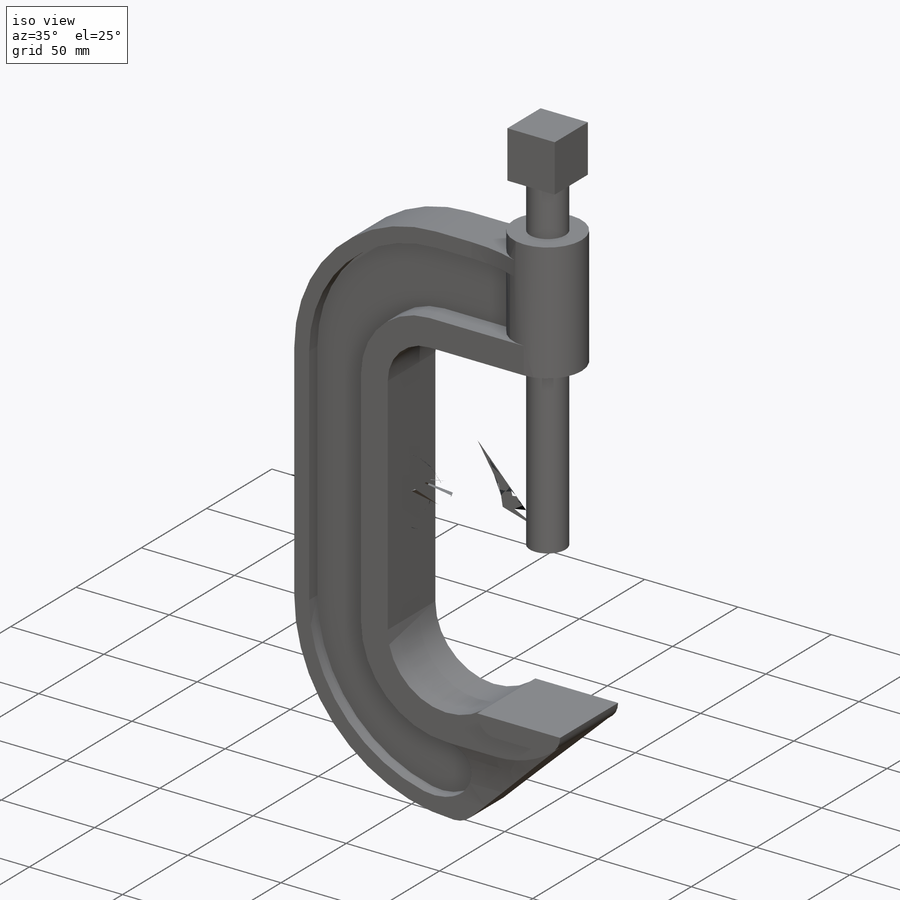
[diagram: iso view]
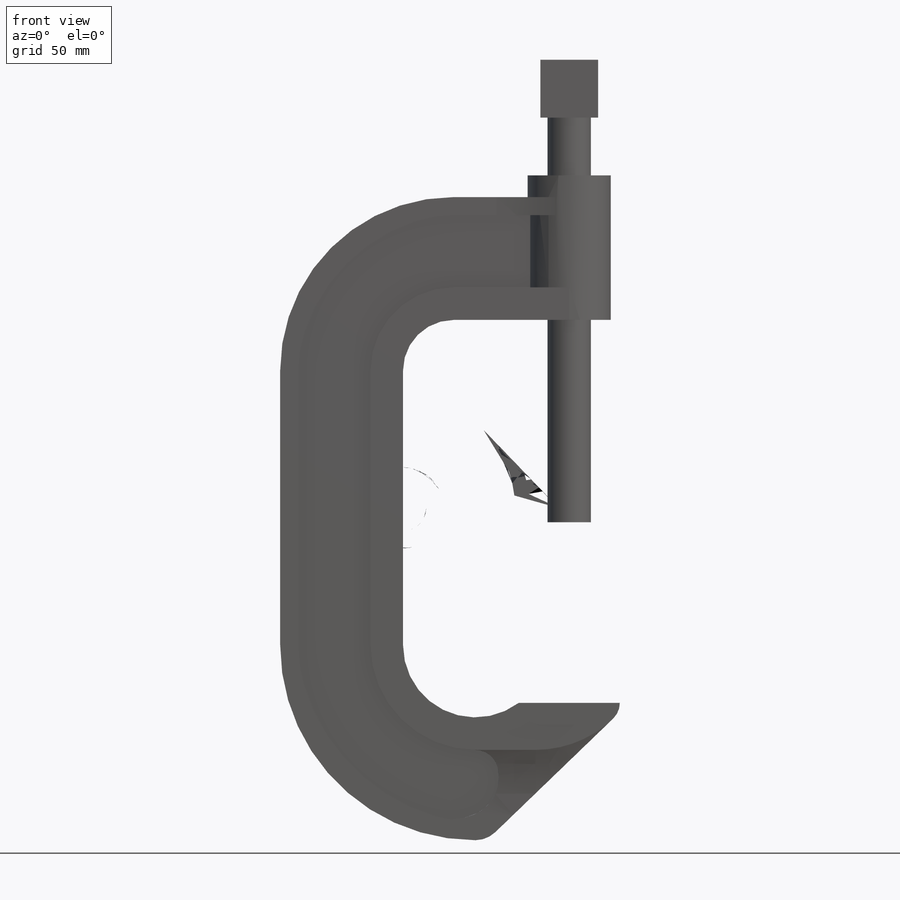
[diagram: front view]
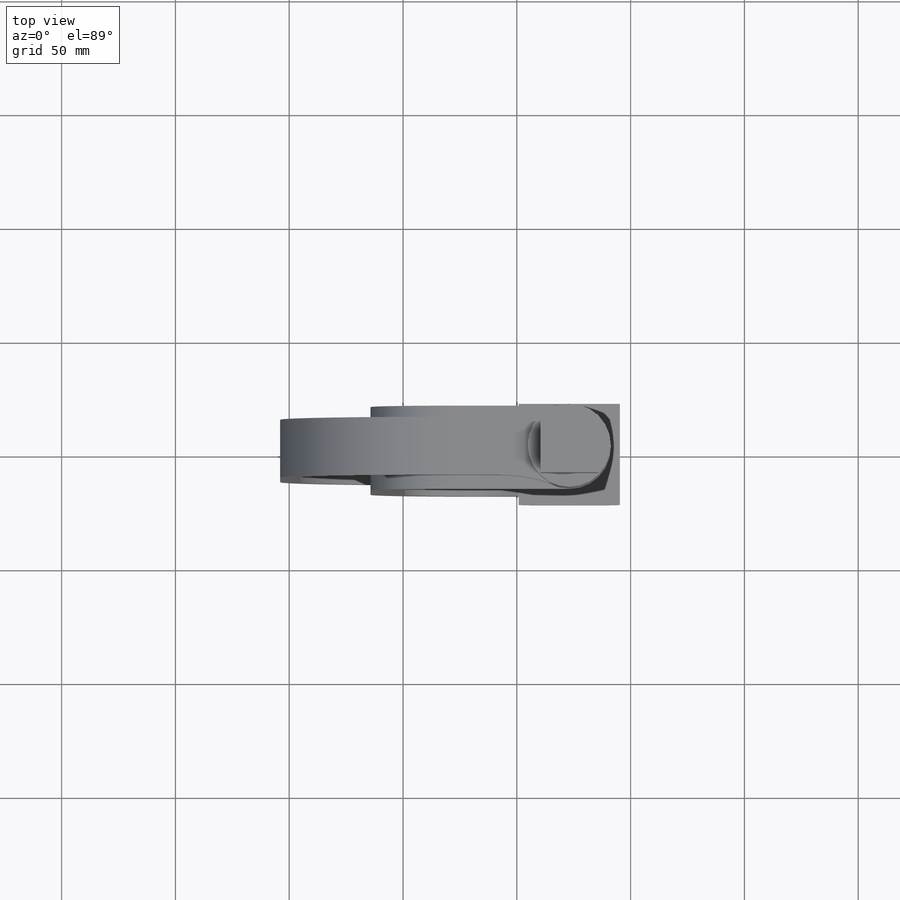
[diagram: top view]
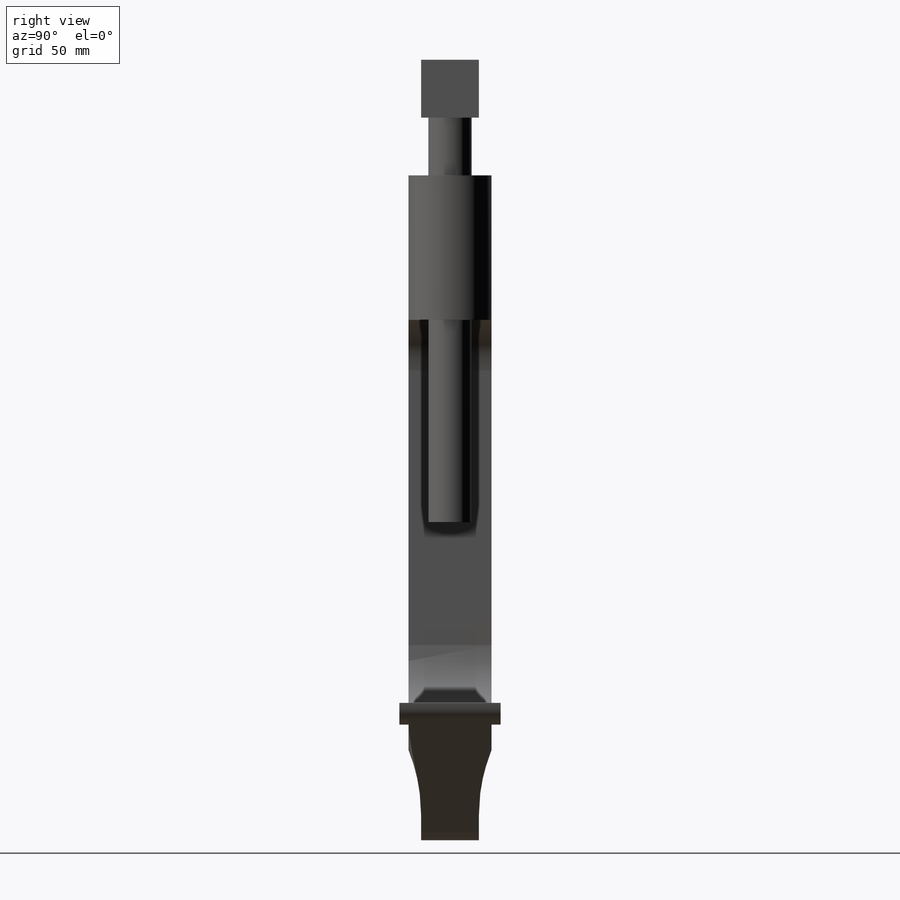
[diagram: right view]
SOLIDWORKS PART (.sldprt)
format: sldprt  version: not decoded by parser v0  size: 573,440 bytes
history: native  units: mm
features: sketch x20, extrude x7, plane x5, cut_extrude x5, sweep x2, fillet x2, material x1, revolve x1, helix x1 (+12 scaffold rows collapsed)
feature tree (56):
  scaffold x12  (default folders/planes/origin — collapsed)
  material  "Cast Carbon Steel"
  sketch  "Sketch1"  dims[c1.D4=22.225mm c1.D5=31.75mm c1.D1=120.65mm c1.D2=73.025mm c1.D3=44.45mm c2.D1=120.65mm]
  plane  "Plane1"
  sketch  "Sketch2"  dims[D1=36.5125mm D2=25.4mm D3=53.975mm D4=14.2875mm D5=7.9375mm D6=12.7mm]
  sweep  "Sweep1"
  sketch  "Sketch3"  dims[D1=36.5125mm]
  extrude  "Boss-Extrude1"  Depth=63.5mm
  sketch  "Sketch6"
  cut_extrude  "Cut-Extrude2"  [1 undecoded]
  sketch  "Sketch5"  dims[D1=9.525mm D2=44.45mm]
  extrude  "Boss-Extrude2"  Depth=44.45mm
  sketch  "Sketch8"
  revolve  "Revolve2"  Angle=90deg
  sketch  "Sketch7"  dims[D1=12.7mm]
  extrude  "Boss-Extrude6"  Depth=25.4mm
  sketch  "Sketch9"
  extrude  "Boss-Extrude7"  Depth=36.5125mm
  sketch  "Sketch10"  dims[c1.D2=10.16mm c1.D3=17.78mm c1.D4=25.4mm c1.D1=~30.958706mm c2.D1=12.0deg]
  cut_extrude  "Cut-Extrude4"  [1 undecoded]
  sketch  "Sketch12"
  cut_extrude  "Cut-Extrude6"  [1 undecoded]
  sketch  "Sketch13"
  extrude  "Boss-Extrude8"  Depth=25.4mm
  fillet  "Fillet2"  Radius=76.2mm
  fillet  "Fillet3"  Radius=76.2mm
  plane  "Plane2"  Offset=25.4mm
  sketch  "Sketch15"  dims[D1=16.51mm]
  helix  "Helix/Spiral1"  Pitch=101.6mm
  sketch  "Sketch16"  dims[c1.D1=~6.132651mm c2.D1=60.0deg c2.D2=6.096mm]
  sweep  "Cut-Sweep1"
  sketch  "Sketch17"  dims[D1=16.51mm]
  cut_extrude  "Cut-Extrude7"  [1 undecoded]
  sketch  "Sketch18"  dims[D1=16.51mm]
  cut_extrude  "Cut-Extrude8"  [1 undecoded]
  plane  "Plane3"
  sketch  "Sketch19"  dims[D1=19.05mm]
  extrude  "Boss-Extrude9"  Depth=25.4mm
  sketch  "Sketch20"  dims[D1=25.4mm D2=15.875mm]
  extrude  "Boss-Extrude10"  Depth=25.4mm
  plane  "Plane_AB"
  plane  "Plane_DE"
  sketch  "Sketch21"
  sketch  "Sketch22"
  sketch  "Sketch23"  dims[D1=19.05mm Point2=0.0 Point3=0.0 Point4=0.0]
decode coverage: 24 of 38 modeling features carry decoded parameters
note: ~ marks probable driven/reference dimensions
note: 5 parameter values undecoded
summary: no parameter record found for 5 features
note: suppression state not decoded; provenance and decode notes live in map.json
